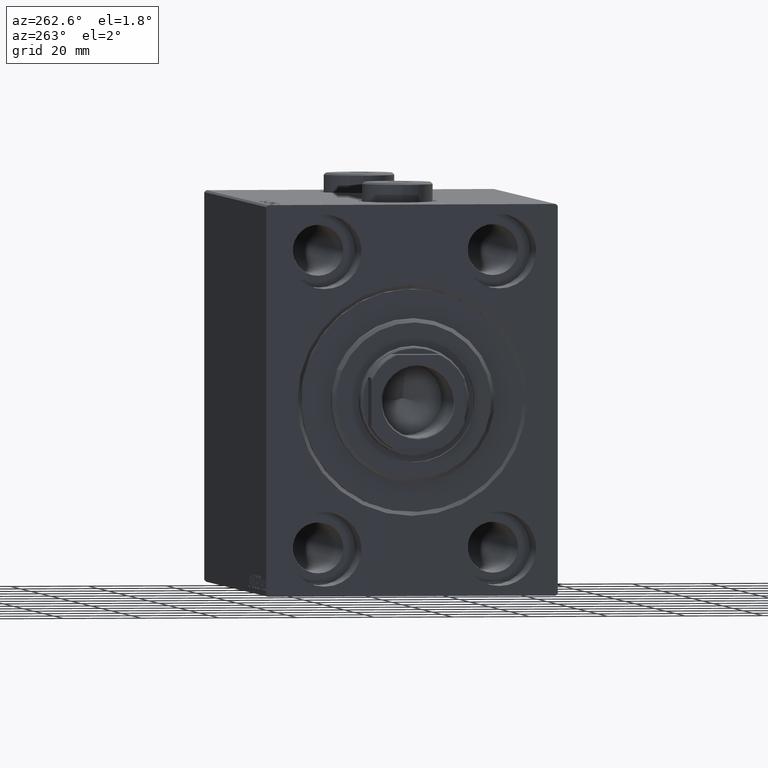
[diagram: clean part render]
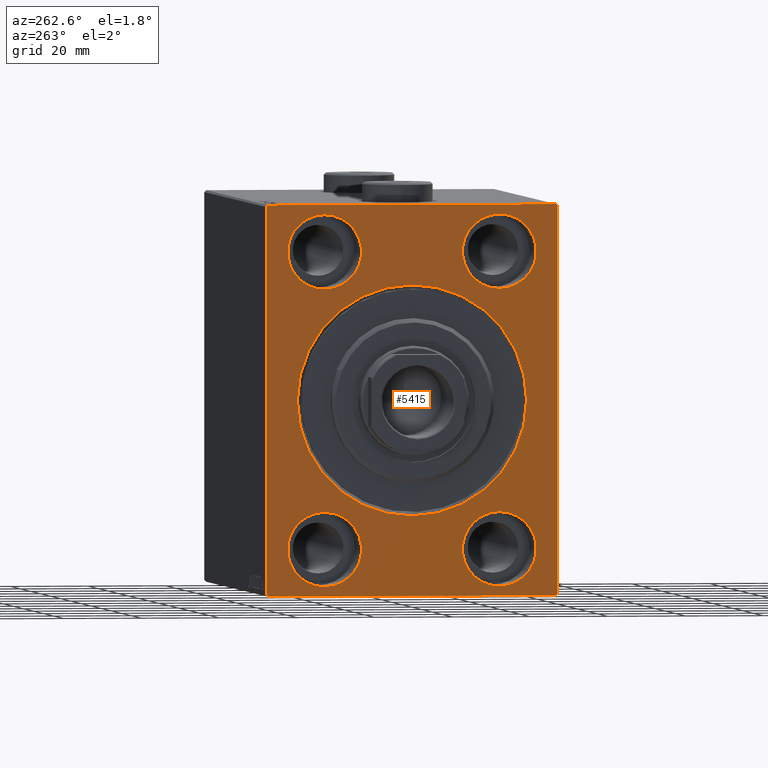
[diagram: same view with one face highlighted and labeled with its STEP entity id]
A machine part, auxiliary view. The second image highlights one B-rep face of the part: STEP entity #5415.
In plain terms, the highlighted planar face has unit normal (1, 0, 0).
Its self-contained STEP definition (entity closure, byte-faithful):
#86 = DIRECTION ( 'NONE',  ( 0.000000000000000000, -0.7071067811865474617, -0.7071067811865474617 ) ) ;
#337 = VERTEX_POINT ( 'NONE', #14944 ) ;
#607 = CARTESIAN_POINT ( 'NONE',  ( 0.000000000000000000, -37.50000000000000711, 49.49999999999997868 ) ) ;
#1015 = CIRCLE ( 'NONE', #12734, 29.50000000000004263 ) ;
#1405 = CIRCLE ( 'NONE', #5076, 9.500000000000001776 ) ;
#1438 = CARTESIAN_POINT ( 'NONE',  ( 0.000000000000000000, -37.50000000000000711, 49.49999999999997868 ) ) ;
#2580 = CIRCLE ( 'NONE', #23076, 9.500000000000001776 ) ;
#2586 = CARTESIAN_POINT ( 'NONE',  ( 0.000000000000000000, 22.50000000000000355, 37.99999999999999289 ) ) ;
#2629 = DIRECTION ( 'NONE',  ( 0.000000000000000000, 0.000000000000000000, 1.000000000000000000 ) ) ;
#3292 = CARTESIAN_POINT ( 'NONE',  ( 0.000000000000000000, 37.50000000000000711, -49.50000000000000000 ) ) ;
#3324 = EDGE_CURVE ( 'NONE', #27158, #41532, #4006, .T. ) ;
#3473 = DIRECTION ( 'NONE',  ( 0.000000000000000000, 0.000000000000000000, 1.000000000000000000 ) ) ;
#3922 = DIRECTION ( 'NONE',  ( 1.000000000000000000, 0.000000000000000000, 0.000000000000000000 ) ) ;
#4006 = CIRCLE ( 'NONE', #27438, 9.500000000000001776 ) ;
#4284 = CARTESIAN_POINT ( 'NONE',  ( 0.000000000000000000, 0.000000000000000000, 0.000000000000000000 ) ) ;
#4366 = CIRCLE ( 'NONE', #16093, 9.500000000000001776 ) ;
#4380 = ORIENTED_EDGE ( 'NONE', *, *, #43700, .F. ) ;
#4384 = EDGE_CURVE ( 'NONE', #7815, #23154, #2580, .T. ) ;
#4729 = LINE ( 'NONE', #32920, #42358 ) ;
#5076 = AXIS2_PLACEMENT_3D ( 'NONE', #2586, #20242, #16570 ) ;
#5415 = ADVANCED_FACE ( 'NONE', ( #35325, #28000, #41977, #25027, #7371, #21578 ), #6696, .F. ) ;
#5493 = ORIENTED_EDGE ( 'NONE', *, *, #45297, .T. ) ;
#5839 = CARTESIAN_POINT ( 'NONE',  ( 0.000000000000000000, -22.50000000000000711, -28.49999999999998934 ) ) ;
#6085 = EDGE_CURVE ( 'NONE', #28423, #12612, #38468, .T. ) ;
#6119 = CARTESIAN_POINT ( 'NONE',  ( 0.000000000000000000, 22.49999999999999645, -37.99999999999999289 ) ) ;
#6666 = DIRECTION ( 'NONE',  ( -1.000000000000000000, 0.000000000000000000, 0.000000000000000000 ) ) ;
#6696 = PLANE ( 'NONE',  #41414 ) ;
#6905 = CARTESIAN_POINT ( 'NONE',  ( 0.000000000000000000, -22.50000000000000711, -37.99999999999999289 ) ) ;
#7106 = CARTESIAN_POINT ( 'NONE',  ( 0.000000000000000000, 37.49999999999999289, 50.00000000000000711 ) ) ;
#7161 = EDGE_CURVE ( 'NONE', #23276, #16606, #26054, .T. ) ;
#7186 = ORIENTED_EDGE ( 'NONE', *, *, #7161, .F. ) ;
#7193 = VERTEX_POINT ( 'NONE', #24819 ) ;
#7371 = FACE_BOUND ( 'NONE', #27610, .T. ) ;
#7432 = CARTESIAN_POINT ( 'NONE',  ( 0.000000000000000000, -37.00000000000003553, -50.00000000000000711 ) ) ;
#7791 = EDGE_LOOP ( 'NONE', ( #4380, #44213 ) ) ;
#7806 = ORIENTED_EDGE ( 'NONE', *, *, #19878, .F. ) ;
#7815 = VERTEX_POINT ( 'NONE', #10935 ) ;
#8168 = CARTESIAN_POINT ( 'NONE',  ( 0.000000000000000000, -36.99999999999999289, 49.99999999999999289 ) ) ;
#8204 = CARTESIAN_POINT ( 'NONE',  ( 0.000000000000000000, 37.49999999999999289, 49.50000000000000000 ) ) ;
#8294 = DIRECTION ( 'NONE',  ( 0.000000000000000000, 0.000000000000000000, 1.000000000000000000 ) ) ;
#8828 = DIRECTION ( 'NONE',  ( 0.000000000000000000, 0.000000000000000000, -1.000000000000000000 ) ) ;
#9372 = VECTOR ( 'NONE', #25781, 1000.000000000000000 ) ;
#9605 = ORIENTED_EDGE ( 'NONE', *, *, #3324, .F. ) ;
#9911 = AXIS2_PLACEMENT_3D ( 'NONE', #41737, #6666, #45160 ) ;
#10928 = DIRECTION ( 'NONE',  ( 1.000000000000000000, 0.000000000000000000, 0.000000000000000000 ) ) ;
#10935 = CARTESIAN_POINT ( 'NONE',  ( 0.000000000000000000, -22.50000000000000711, -47.49999999999999289 ) ) ;
#11023 = EDGE_LOOP ( 'NONE', ( #9605, #7806 ) ) ;
#11097 = DIRECTION ( 'NONE',  ( -0.000000000000000000, -0.7071067811865474617, 0.7071067811865474617 ) ) ;
#11281 = CARTESIAN_POINT ( 'NONE',  ( 0.000000000000000000, -22.49999999999999645, 37.99999999999999289 ) ) ;
#11561 = EDGE_CURVE ( 'NONE', #23969, #15260, #30944, .T. ) ;
#12426 = AXIS2_PLACEMENT_3D ( 'NONE', #31257, #17523, #2629 ) ;
#12612 = VERTEX_POINT ( 'NONE', #18791 ) ;
#12644 = DIRECTION ( 'NONE',  ( -1.000000000000000000, 0.000000000000000000, 0.000000000000000000 ) ) ;
#12734 = AXIS2_PLACEMENT_3D ( 'NONE', #32657, #30135, #8828 ) ;
#12978 = VECTOR ( 'NONE', #35908, 1000.000000000000114 ) ;
#13540 = VERTEX_POINT ( 'NONE', #25848 ) ;
#13779 = DIRECTION ( 'NONE',  ( 0.000000000000000000, 0.000000000000000000, 1.000000000000000000 ) ) ;
#14301 = EDGE_CURVE ( 'NONE', #23276, #15260, #21246, .T. ) ;
#14381 = ORIENTED_EDGE ( 'NONE', *, *, #31381, .F. ) ;
#14532 = ORIENTED_EDGE ( 'NONE', *, *, #45141, .T. ) ;
#14761 = VERTEX_POINT ( 'NONE', #43403 ) ;
#14944 = CARTESIAN_POINT ( 'NONE',  ( 0.000000000000000000, 22.49999999999999645, -28.49999999999998934 ) ) ;
#15260 = VERTEX_POINT ( 'NONE', #8168 ) ;
#15364 = ORIENTED_EDGE ( 'NONE', *, *, #16536, .F. ) ;
#16093 = AXIS2_PLACEMENT_3D ( 'NONE', #31194, #23649, #13779 ) ;
#16536 = EDGE_CURVE ( 'NONE', #7193, #25935, #32193, .T. ) ;
#16570 = DIRECTION ( 'NONE',  ( 0.000000000000000000, 0.000000000000000000, 1.000000000000000000 ) ) ;
#16606 = VERTEX_POINT ( 'NONE', #26002 ) ;
#17162 = CARTESIAN_POINT ( 'NONE',  ( 0.000000000000000000, 22.50000000000000355, 47.49999999999999289 ) ) ;
#17194 = EDGE_CURVE ( 'NONE', #14761, #26662, #22427, .T. ) ;
#17523 = DIRECTION ( 'NONE',  ( -1.000000000000000000, 0.000000000000000000, 0.000000000000000000 ) ) ;
#18713 = DIRECTION ( 'NONE',  ( -0.000000000000000000, 0.7071067811865425767, -0.7071067811865525687 ) ) ;
#18791 = CARTESIAN_POINT ( 'NONE',  ( 0.000000000000000000, 0.000000000000000000, 29.50000000000004263 ) ) ;
#18979 = CARTESIAN_POINT ( 'NONE',  ( 0.000000000000000000, 37.00000000000000711, -50.00000000000000000 ) ) ;
#19246 = EDGE_LOOP ( 'NONE', ( #7186, #39872, #26282, #14532, #23811, #31050, #15364, #5493 ) ) ;
#19638 = DIRECTION ( 'NONE',  ( 0.000000000000000000, 0.000000000000000000, -1.000000000000000000 ) ) ;
#19697 = VECTOR ( 'NONE', #36634, 1000.000000000000000 ) ;
#19861 = EDGE_CURVE ( 'NONE', #14761, #25935, #24174, .T. ) ;
#19878 = EDGE_CURVE ( 'NONE', #41532, #27158, #29239, .T. ) ;
#20242 = DIRECTION ( 'NONE',  ( -1.000000000000000000, 0.000000000000000000, 0.000000000000000000 ) ) ;
#21162 = DIRECTION ( 'NONE',  ( -1.000000000000000000, 0.000000000000000000, 0.000000000000000000 ) ) ;
#21246 = LINE ( 'NONE', #607, #12978 ) ;
#21391 = EDGE_CURVE ( 'NONE', #29181, #337, #40990, .T. ) ;
#21578 = FACE_OUTER_BOUND ( 'NONE', #19246, .T. ) ;
#21951 = DIRECTION ( 'NONE',  ( 0.000000000000000000, -1.000000000000000000, -1.850371707708594316E-16 ) ) ;
#22427 = LINE ( 'NONE', #22659, #19697 ) ;
#22659 = CARTESIAN_POINT ( 'NONE',  ( 0.000000000000000000, 37.50000000000000711, -50.00000000000000000 ) ) ;
#23076 = AXIS2_PLACEMENT_3D ( 'NONE', #6905, #34866, #3473 ) ;
#23154 = VERTEX_POINT ( 'NONE', #5839 ) ;
#23276 = VERTEX_POINT ( 'NONE', #1438 ) ;
#23462 = AXIS2_PLACEMENT_3D ( 'NONE', #6119, #44630, #33855 ) ;
#23649 = DIRECTION ( 'NONE',  ( -1.000000000000000000, 0.000000000000000000, 0.000000000000000000 ) ) ;
#23759 = CARTESIAN_POINT ( 'NONE',  ( 0.000000000000000000, 36.99999999999999289, 50.00000000000000711 ) ) ;
#23811 = ORIENTED_EDGE ( 'NONE', *, *, #17194, .F. ) ;
#23879 = VECTOR ( 'NONE', #19638, 1000.000000000000000 ) ;
#23951 = CARTESIAN_POINT ( 'NONE',  ( 0.000000000000000000, -22.49999999999999645, 47.49999999999999289 ) ) ;
#23969 = VERTEX_POINT ( 'NONE', #23759 ) ;
#24081 = VECTOR ( 'NONE', #11097, 1000.000000000000114 ) ;
#24174 = LINE ( 'NONE', #3292, #27802 ) ;
#24294 = EDGE_CURVE ( 'NONE', #23154, #7815, #4366, .T. ) ;
#24415 = LINE ( 'NONE', #7432, #24081 ) ;
#24573 = ORIENTED_EDGE ( 'NONE', *, *, #44831, .F. ) ;
#24819 = CARTESIAN_POINT ( 'NONE',  ( 0.000000000000000000, -37.00000000000003553, -50.00000000000000711 ) ) ;
#25027 = FACE_BOUND ( 'NONE', #38026, .T. ) ;
#25755 = VERTEX_POINT ( 'NONE', #17162 ) ;
#25781 = DIRECTION ( 'NONE',  ( 0.000000000000000000, 1.000000000000000000, 9.251858538542970348E-17 ) ) ;
#25848 = CARTESIAN_POINT ( 'NONE',  ( 0.000000000000000000, 22.50000000000000355, 28.49999999999998934 ) ) ;
#25935 = VERTEX_POINT ( 'NONE', #18979 ) ;
#26002 = CARTESIAN_POINT ( 'NONE',  ( 0.000000000000000000, -37.50000000000000711, -49.50000000000003553 ) ) ;
#26054 = LINE ( 'NONE', #26508, #23879 ) ;
#26219 = EDGE_CURVE ( 'NONE', #12612, #28423, #1015, .T. ) ;
#26282 = ORIENTED_EDGE ( 'NONE', *, *, #11561, .F. ) ;
#26508 = CARTESIAN_POINT ( 'NONE',  ( 0.000000000000000000, -37.50000000000000711, 49.99999999999999289 ) ) ;
#26662 = VERTEX_POINT ( 'NONE', #8204 ) ;
#27158 = VERTEX_POINT ( 'NONE', #23951 ) ;
#27438 = AXIS2_PLACEMENT_3D ( 'NONE', #11281, #21162, #42464 ) ;
#27610 = EDGE_LOOP ( 'NONE', ( #35115, #36437 ) ) ;
#27802 = VECTOR ( 'NONE', #86, 1000.000000000000114 ) ;
#28000 = FACE_BOUND ( 'NONE', #7791, .T. ) ;
#28423 = VERTEX_POINT ( 'NONE', #35756 ) ;
#28795 = DIRECTION ( 'NONE',  ( 0.000000000000000000, 0.000000000000000000, -1.000000000000000000 ) ) ;
#29066 = CARTESIAN_POINT ( 'NONE',  ( 0.000000000000000000, -22.49999999999999645, 28.49999999999998934 ) ) ;
#29180 = CIRCLE ( 'NONE', #37236, 9.500000000000001776 ) ;
#29181 = VERTEX_POINT ( 'NONE', #31482 ) ;
#29239 = CIRCLE ( 'NONE', #12426, 9.500000000000001776 ) ;
#30135 = DIRECTION ( 'NONE',  ( 1.000000000000000000, 0.000000000000000000, 0.000000000000000000 ) ) ;
#30445 = AXIS2_PLACEMENT_3D ( 'NONE', #4284, #10928, #28795 ) ;
#30944 = LINE ( 'NONE', #7106, #34853 ) ;
#31050 = ORIENTED_EDGE ( 'NONE', *, *, #19861, .T. ) ;
#31194 = CARTESIAN_POINT ( 'NONE',  ( 0.000000000000000000, -22.50000000000000711, -37.99999999999999289 ) ) ;
#31257 = CARTESIAN_POINT ( 'NONE',  ( 0.000000000000000000, -22.49999999999999645, 37.99999999999999289 ) ) ;
#31349 = CARTESIAN_POINT ( 'NONE',  ( 0.000000000000000000, -37.50000000000000711, -50.00000000000000711 ) ) ;
#31381 = EDGE_CURVE ( 'NONE', #25755, #13540, #35519, .T. ) ;
#31482 = CARTESIAN_POINT ( 'NONE',  ( 0.000000000000000000, 22.49999999999999645, -47.49999999999999289 ) ) ;
#32193 = LINE ( 'NONE', #31349, #9372 ) ;
#32657 = CARTESIAN_POINT ( 'NONE',  ( 0.000000000000000000, 0.000000000000000000, 0.000000000000000000 ) ) ;
#32920 = CARTESIAN_POINT ( 'NONE',  ( 0.000000000000000000, 36.99999999999999289, 50.00000000000000711 ) ) ;
#33855 = DIRECTION ( 'NONE',  ( 0.000000000000000000, 0.000000000000000000, 1.000000000000000000 ) ) ;
#34853 = VECTOR ( 'NONE', #21951, 1000.000000000000000 ) ;
#34866 = DIRECTION ( 'NONE',  ( -1.000000000000000000, 0.000000000000000000, 0.000000000000000000 ) ) ;
#35115 = ORIENTED_EDGE ( 'NONE', *, *, #24294, .F. ) ;
#35325 = FACE_BOUND ( 'NONE', #40247, .T. ) ;
#35519 = CIRCLE ( 'NONE', #9911, 9.500000000000001776 ) ;
#35756 = CARTESIAN_POINT ( 'NONE',  ( 0.000000000000000000, 3.612708057484697126E-15, -29.50000000000004263 ) ) ;
#35908 = DIRECTION ( 'NONE',  ( -0.000000000000000000, 0.7071067811865474617, 0.7071067811865474617 ) ) ;
#36437 = ORIENTED_EDGE ( 'NONE', *, *, #4384, .F. ) ;
#36634 = DIRECTION ( 'NONE',  ( 0.000000000000000000, -1.387778780781445676E-16, 1.000000000000000000 ) ) ;
#36936 = CARTESIAN_POINT ( 'NONE',  ( 0.000000000000000000, 22.49999999999999645, -37.99999999999999289 ) ) ;
#37236 = AXIS2_PLACEMENT_3D ( 'NONE', #36936, #12644, #8294 ) ;
#38026 = EDGE_LOOP ( 'NONE', ( #14381, #24573 ) ) ;
#38108 = CARTESIAN_POINT ( 'NONE',  ( 0.000000000000000000, 0.000000000000000000, 0.000000000000000000 ) ) ;
#38468 = CIRCLE ( 'NONE', #30445, 29.50000000000004263 ) ;
#39872 = ORIENTED_EDGE ( 'NONE', *, *, #14301, .T. ) ;
#40247 = EDGE_LOOP ( 'NONE', ( #41008, #44357 ) ) ;
#40990 = CIRCLE ( 'NONE', #23462, 9.500000000000001776 ) ;
#41008 = ORIENTED_EDGE ( 'NONE', *, *, #26219, .T. ) ;
#41414 = AXIS2_PLACEMENT_3D ( 'NONE', #38108, #3922, #45191 ) ;
#41532 = VERTEX_POINT ( 'NONE', #29066 ) ;
#41737 = CARTESIAN_POINT ( 'NONE',  ( 0.000000000000000000, 22.50000000000000355, 37.99999999999999289 ) ) ;
#41977 = FACE_BOUND ( 'NONE', #11023, .T. ) ;
#42358 = VECTOR ( 'NONE', #18713, 999.9999999999998863 ) ;
#42464 = DIRECTION ( 'NONE',  ( 0.000000000000000000, 0.000000000000000000, 1.000000000000000000 ) ) ;
#43403 = CARTESIAN_POINT ( 'NONE',  ( 0.000000000000000000, 37.50000000000000711, -49.50000000000000000 ) ) ;
#43700 = EDGE_CURVE ( 'NONE', #337, #29181, #29180, .T. ) ;
#44213 = ORIENTED_EDGE ( 'NONE', *, *, #21391, .F. ) ;
#44357 = ORIENTED_EDGE ( 'NONE', *, *, #6085, .T. ) ;
#44630 = DIRECTION ( 'NONE',  ( -1.000000000000000000, 0.000000000000000000, 0.000000000000000000 ) ) ;
#44831 = EDGE_CURVE ( 'NONE', #13540, #25755, #1405, .T. ) ;
#45141 = EDGE_CURVE ( 'NONE', #23969, #26662, #4729, .T. ) ;
#45160 = DIRECTION ( 'NONE',  ( 0.000000000000000000, 0.000000000000000000, 1.000000000000000000 ) ) ;
#45191 = DIRECTION ( 'NONE',  ( 0.000000000000000000, 0.000000000000000000, -1.000000000000000000 ) ) ;
#45297 = EDGE_CURVE ( 'NONE', #7193, #16606, #24415, .T. ) ;